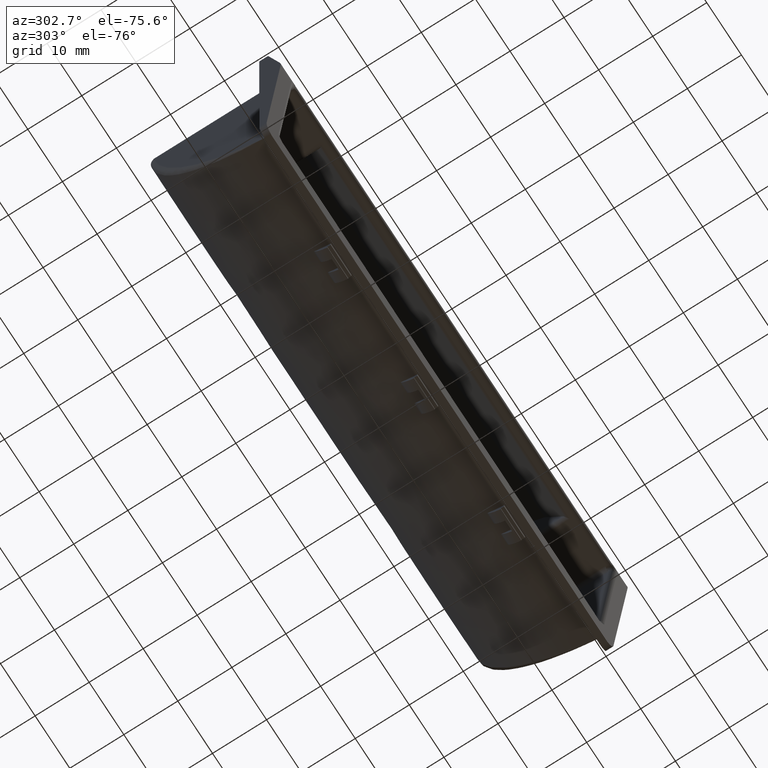
[diagram: clean part render]
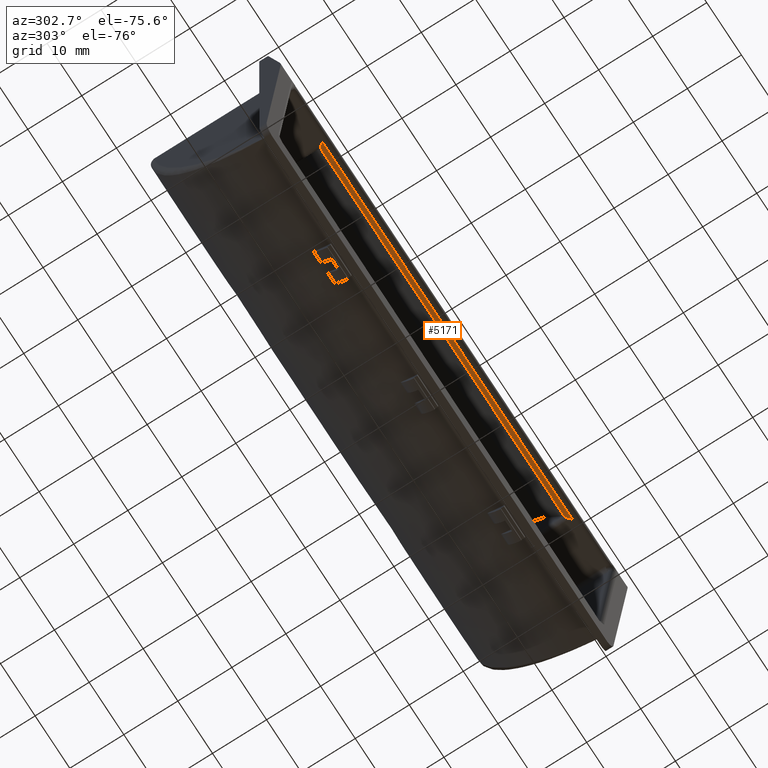
[diagram: same view with one face highlighted and labeled with its STEP entity id]
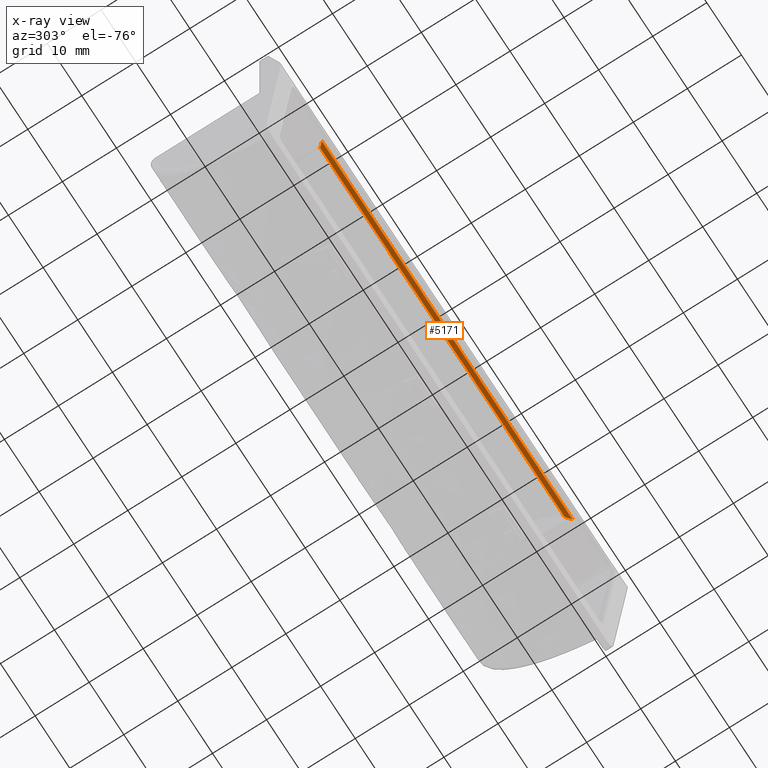
[diagram: x-ray of the same camera — body ghosted, the highlighted face saturated]
A machine part, auxiliary view. The second image highlights one B-rep face of the part: STEP entity #5171.
The next image is the same camera in x-ray: the body ghosted, the highlighted face saturated — about 0% of this face is hidden behind the body in this view.
In plain terms, the highlighted face is a freeform B-spline surface patch.
Its self-contained STEP definition (entity closure, byte-faithful):
#2836=CARTESIAN_POINT('',(-36.119999999999997,-2.696189475692040,9.750000000000000));
#2837=VERTEX_POINT('',#2836);
#2838=CARTESIAN_POINT('',(-35.232902440725752,-1.809091916417875,10.288418024257981));
#2839=VERTEX_POINT('',#2838);
#2840=CARTESIAN_POINT('',(-36.119999999999997,-2.696189475692038,9.749999999999860));
#2841=CARTESIAN_POINT('',(-35.513056582526652,-2.089246058218687,9.749999999999860));
#2842=CARTESIAN_POINT('',(-35.232902440725802,-1.809091916417831,10.288418024258011));
#2850=(BOUNDED_CURVE()B_SPLINE_CURVE(2,(#2840,#2841,#2842),.UNSPECIFIED.,.F.,.U.)CURVE()GEOMETRIC_REPRESENTATION_ITEM()QUASI_UNIFORM_CURVE()RATIONAL_B_SPLINE_CURVE((1.0,0.854863139848087,1.0))REPRESENTATION_ITEM(''));
#2851=EDGE_CURVE('',#2837,#2839,#2850,.T.);
#3316=CARTESIAN_POINT('',(35.232902440725852,-1.809091916417875,10.288418024257981));
#3317=VERTEX_POINT('',#3316);
#3367=CARTESIAN_POINT('',(36.119999999999997,-2.696189475692040,9.750000000000000));
#3368=VERTEX_POINT('',#3367);
#3374=CARTESIAN_POINT('',(35.232902440725823,-1.809091916417848,10.288418024257981));
#3375=CARTESIAN_POINT('',(35.513056582526680,-2.089246058218713,9.749999999999861));
#3376=CARTESIAN_POINT('',(36.119999999999997,-2.696189475692040,9.750000000000000));
#3384=(BOUNDED_CURVE()B_SPLINE_CURVE(2,(#3374,#3375,#3376),.UNSPECIFIED.,.F.,.U.)CURVE()GEOMETRIC_REPRESENTATION_ITEM()QUASI_UNIFORM_CURVE()RATIONAL_B_SPLINE_CURVE((1.0,0.854863139848097,1.0))REPRESENTATION_ITEM(''));
#3385=EDGE_CURVE('',#3317,#3368,#3384,.T.);
#5143=CARTESIAN_POINT('',(-37.926000000000002,-1.793604191342177,10.319488903191701));
#5144=CARTESIAN_POINT('',(37.971150000000002,-1.793604191342177,10.319488903191701));
#5145=CARTESIAN_POINT('',(-37.926000000000002,-2.081081572885427,9.716780039034580));
#5146=CARTESIAN_POINT('',(37.971150000000002,-2.081081572885427,9.716780039034580));
#5147=CARTESIAN_POINT('',(-37.926000000000002,-2.747944987759314,9.751340214602267));
#5148=CARTESIAN_POINT('',(37.971150000000009,-2.747944987759314,9.751340214602267));
#5156=(BOUNDED_SURFACE()B_SPLINE_SURFACE(1,2,((#5143,#5145,#5147),(#5144,#5146,#5148)),.UNSPECIFIED.,.F.,.F.,.U.)B_SPLINE_SURFACE_WITH_KNOTS((2,2),(3,3),(0.0,75.897150000000025),(0.0,0.976472692027222),.UNSPECIFIED.)GEOMETRIC_REPRESENTATION_ITEM()RATIONAL_B_SPLINE_SURFACE(((1.0,0.828264025946652,0.991919029696884),(1.0,0.828264025946652,0.991919029696884)))REPRESENTATION_ITEM('')SURFACE());
#5157=CARTESIAN_POINT('',(-35.232902440725752,-1.809091916417875,10.288418024257981));
#5158=CARTESIAN_POINT('',(35.232902440725852,-1.809091916417875,10.288418024257981));
#5159=QUASI_UNIFORM_CURVE('',1,(#5157,#5158),.UNSPECIFIED.,.F.,.U.);
#5160=EDGE_CURVE('',#2839,#3317,#5159,.T.);
#5161=ORIENTED_EDGE('',*,*,#5160,.T.);
#5162=ORIENTED_EDGE('',*,*,#3385,.T.);
#5163=CARTESIAN_POINT('',(-36.119999999999997,-2.696189475692040,9.750000000000000));
#5164=CARTESIAN_POINT('',(36.119999999999997,-2.696189475692040,9.750000000000000));
#5165=QUASI_UNIFORM_CURVE('',1,(#5163,#5164),.UNSPECIFIED.,.F.,.U.);
#5166=EDGE_CURVE('',#2837,#3368,#5165,.T.);
#5167=ORIENTED_EDGE('',*,*,#5166,.F.);
#5168=ORIENTED_EDGE('',*,*,#2851,.T.);
#5169=EDGE_LOOP('',(#5161,#5162,#5167,#5168));
#5170=FACE_OUTER_BOUND('',#5169,.T.);
#5171=ADVANCED_FACE('',(#5170),#5156,.T.);